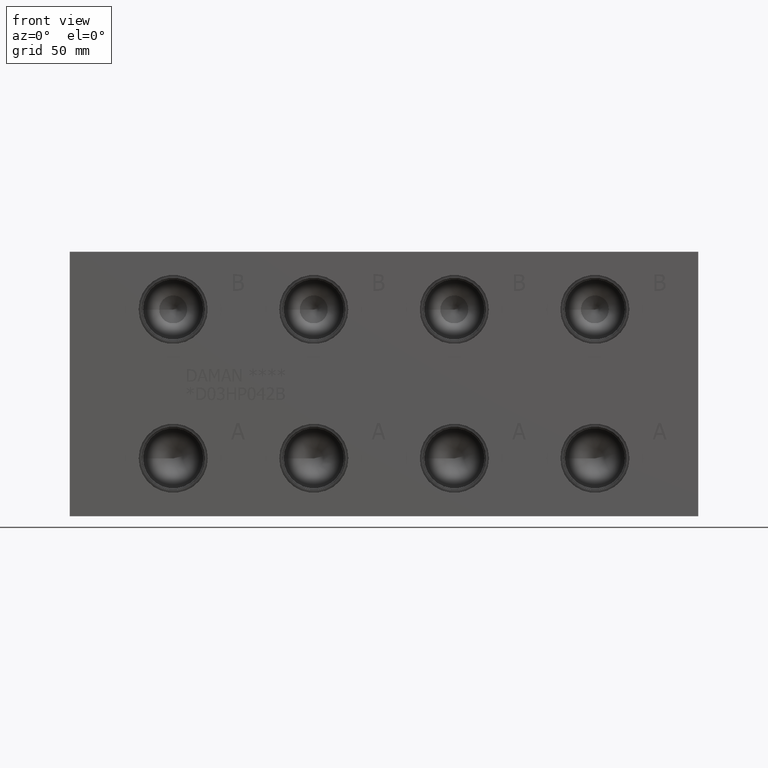
[diagram: clean part render]
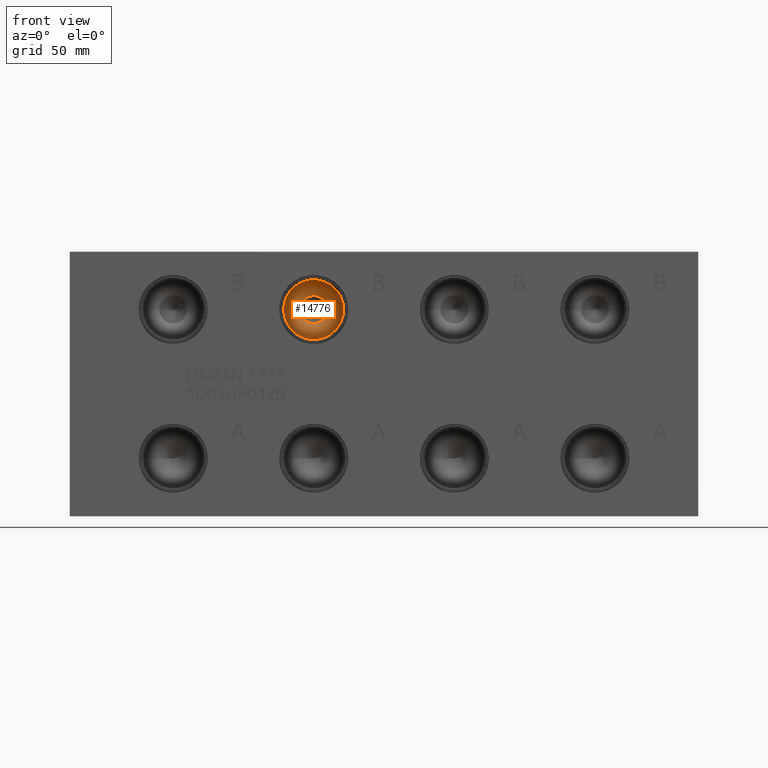
[diagram: same view with one face highlighted and labeled with its STEP entity id]
A machine part, front view. The second image highlights one B-rep face of the part: STEP entity #14776.
In plain terms, the highlighted conical surface has half-angle 60 deg.
Its self-contained STEP definition (entity closure, byte-faithful):
#34=CONICAL_SURFACE('',#15551,5.7531,1.0471975511966);
#507=CIRCLE('',#15541,5.3594);
#513=CIRCLE('',#15552,11.5062);
#514=CIRCLE('',#15553,11.5062);
#1869=FACE_OUTER_BOUND('',#2728,.T.);
#2728=EDGE_LOOP('',(#12403,#12404,#12405,#12406,#12407));
#4139=LINE('',#24906,#5458);
#5458=VECTOR('',#18381,5.7531);
#6719=VERTEX_POINT('',#24880);
#6726=VERTEX_POINT('',#24903);
#6727=VERTEX_POINT('',#24904);
#8695=EDGE_CURVE('',#6719,#6719,#507,.T.);
#8706=EDGE_CURVE('',#6726,#6727,#513,.T.);
#8707=EDGE_CURVE('',#6727,#6719,#4139,.T.);
#8708=EDGE_CURVE('',#6727,#6726,#514,.T.);
#12403=ORIENTED_EDGE('',*,*,#8706,.T.);
#12404=ORIENTED_EDGE('',*,*,#8707,.T.);
#12405=ORIENTED_EDGE('',*,*,#8695,.T.);
#12406=ORIENTED_EDGE('',*,*,#8707,.F.);
#12407=ORIENTED_EDGE('',*,*,#8708,.T.);
#14776=ADVANCED_FACE('',(#1869),#34,.F.);
#15541=AXIS2_PLACEMENT_3D('',#24881,#18352,#18353);
#15551=AXIS2_PLACEMENT_3D('',#24902,#18377,#18378);
#15552=AXIS2_PLACEMENT_3D('',#24905,#18379,#18380);
#15553=AXIS2_PLACEMENT_3D('',#24907,#18382,#18383);
#18352=DIRECTION('center_axis',(0.,1.,0.));
#18353=DIRECTION('ref_axis',(1.,0.,0.));
#18377=DIRECTION('center_axis',(0.,-1.,0.));
#18378=DIRECTION('ref_axis',(1.,0.,0.));
#18379=DIRECTION('center_axis',(0.,-1.,0.));
#18380=DIRECTION('ref_axis',(1.,0.,0.));
#18381=DIRECTION('',(0.866025403784439,0.5,1.06057523872491E-16));
#18382=DIRECTION('center_axis',(0.,-1.,0.));
#18383=DIRECTION('ref_axis',(1.,0.,0.));
#24880=CARTESIAN_POINT('',(88.2904,31.8307466346548,79.375));
#24881=CARTESIAN_POINT('Origin',(93.6498,31.8307466346548,79.375));
#24902=CARTESIAN_POINT('Origin',(93.6498,31.6034438336748,79.375));
#24903=CARTESIAN_POINT('',(105.156,28.28189,79.375));
#24904=CARTESIAN_POINT('',(82.1436,28.28189,79.375));
#24905=CARTESIAN_POINT('Origin',(93.6498,28.28189,79.375));
#24906=CARTESIAN_POINT('',(87.8967,31.6034438336748,79.375));
#24907=CARTESIAN_POINT('Origin',(93.6498,28.28189,79.375));